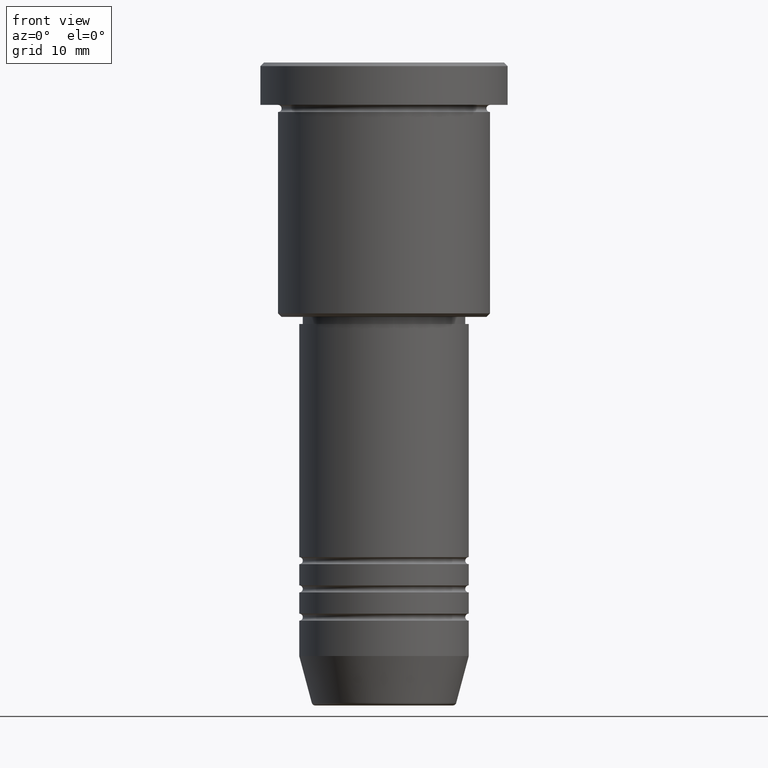
[diagram: clean part render]
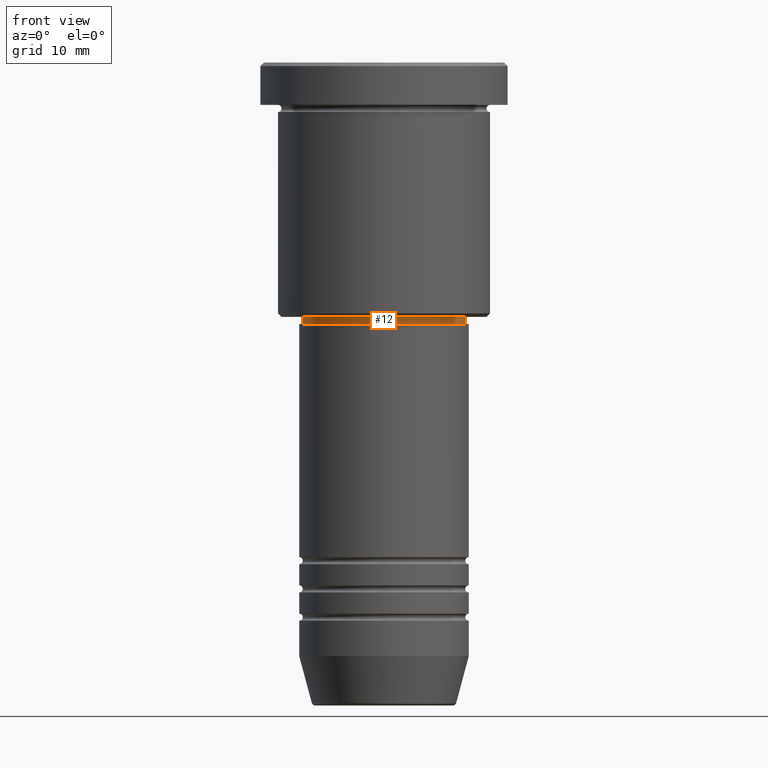
[diagram: same view with one face highlighted and labeled with its STEP entity id]
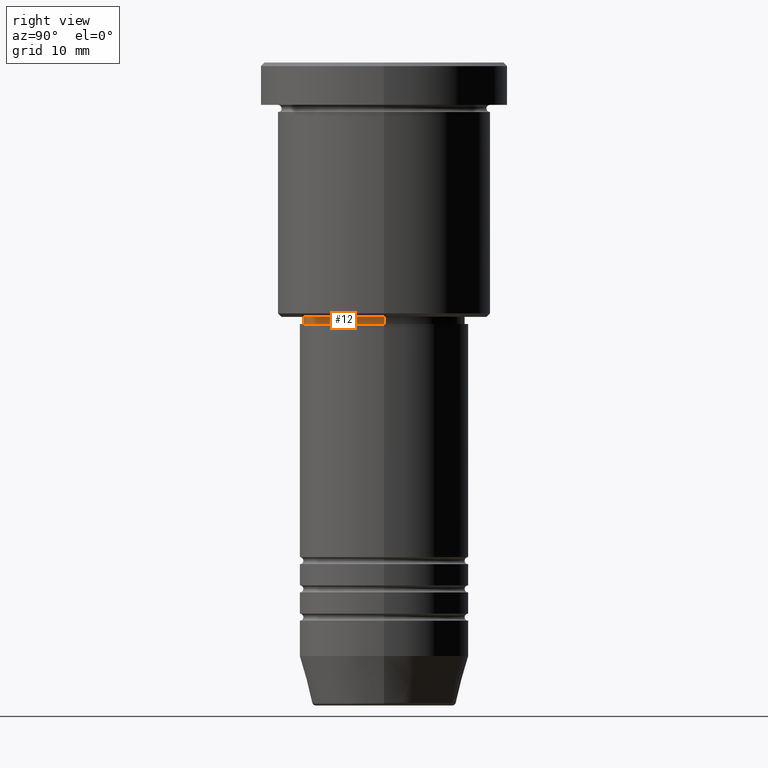
[diagram: same view with one face highlighted and labeled with its STEP entity id]
A machine part, front view. The second image highlights one B-rep face of the part: STEP entity #12.
A second angle (right view) of the same face is appended — the face is thin or edge-on in the first view.
In plain terms, the highlighted cylindrical surface (partial cylindrical patch) has radius 11.5 mm, axis along (-0, -0, 1).
Its self-contained STEP definition (entity closure, byte-faithful):
#12 = ADVANCED_FACE ( 'NONE', ( #764 ), #488, .T. ) ;
#55 = DIRECTION ( 'NONE',  ( -0.000000000000000000, -0.000000000000000000, 1.000000000000000000 ) ) ;
#99 = AXIS2_PLACEMENT_3D ( 'NONE', #104, #1029, #1016 ) ;
#104 = CARTESIAN_POINT ( 'NONE',  ( 0.000000000000000000, 0.000000000000000000, -36.99999999999999289 ) ) ;
#119 = CIRCLE ( 'NONE', #99, 11.50000000000000000 ) ;
#158 = EDGE_LOOP ( 'NONE', ( #963, #421, #386, #531 ) ) ;
#178 = EDGE_CURVE ( 'NONE', #566, #372, #865, .T. ) ;
#254 = VECTOR ( 'NONE', #55, 1000.000000000000000 ) ;
#270 = CARTESIAN_POINT ( 'NONE',  ( 11.50000000000000000, 0.000000000000000000, -36.99999999999999289 ) ) ;
#302 = VERTEX_POINT ( 'NONE', #606 ) ;
#305 = CARTESIAN_POINT ( 'NONE',  ( 11.50000000000000000, 0.000000000000000000, 0.000000000000000000 ) ) ;
#312 = CIRCLE ( 'NONE', #931, 11.50000000000000000 ) ;
#372 = VERTEX_POINT ( 'NONE', #591 ) ;
#386 = ORIENTED_EDGE ( 'NONE', *, *, #713, .T. ) ;
#409 = CARTESIAN_POINT ( 'NONE',  ( 0.000000000000000000, 0.000000000000000000, 0.000000000000000000 ) ) ;
#421 = ORIENTED_EDGE ( 'NONE', *, *, #884, .T. ) ;
#488 = CYLINDRICAL_SURFACE ( 'NONE', #778, 11.50000000000000000 ) ;
#531 = ORIENTED_EDGE ( 'NONE', *, *, #548, .F. ) ;
#538 = VERTEX_POINT ( 'NONE', #270 ) ;
#548 = EDGE_CURVE ( 'NONE', #372, #302, #312, .T. ) ;
#566 = VERTEX_POINT ( 'NONE', #770 ) ;
#591 = CARTESIAN_POINT ( 'NONE',  ( -11.50000000000000000, 1.408343819019456176E-15, -35.99999999999999289 ) ) ;
#606 = CARTESIAN_POINT ( 'NONE',  ( 11.50000000000000000, 0.000000000000000000, -35.99999999999999289 ) ) ;
#625 = CARTESIAN_POINT ( 'NONE',  ( 0.000000000000000000, 0.000000000000000000, -35.99999999999999289 ) ) ;
#632 = DIRECTION ( 'NONE',  ( -0.000000000000000000, -0.000000000000000000, 1.000000000000000000 ) ) ;
#713 = EDGE_CURVE ( 'NONE', #538, #302, #830, .T. ) ;
#764 = FACE_OUTER_BOUND ( 'NONE', #158, .T. ) ;
#765 = VECTOR ( 'NONE', #929, 1000.000000000000000 ) ;
#770 = CARTESIAN_POINT ( 'NONE',  ( -11.50000000000000000, 1.408343819019456176E-15, -36.99999999999999289 ) ) ;
#778 = AXIS2_PLACEMENT_3D ( 'NONE', #409, #1136, #1120 ) ;
#790 = CARTESIAN_POINT ( 'NONE',  ( -11.50000000000000000, 1.408343819019456176E-15, 0.000000000000000000 ) ) ;
#793 = DIRECTION ( 'NONE',  ( 1.000000000000000000, 0.000000000000000000, 0.000000000000000000 ) ) ;
#830 = LINE ( 'NONE', #305, #765 ) ;
#865 = LINE ( 'NONE', #790, #254 ) ;
#884 = EDGE_CURVE ( 'NONE', #566, #538, #119, .T. ) ;
#929 = DIRECTION ( 'NONE',  ( -0.000000000000000000, -0.000000000000000000, 1.000000000000000000 ) ) ;
#931 = AXIS2_PLACEMENT_3D ( 'NONE', #625, #632, #793 ) ;
#963 = ORIENTED_EDGE ( 'NONE', *, *, #178, .F. ) ;
#1016 = DIRECTION ( 'NONE',  ( 1.000000000000000000, 0.000000000000000000, 0.000000000000000000 ) ) ;
#1029 = DIRECTION ( 'NONE',  ( -0.000000000000000000, -0.000000000000000000, 1.000000000000000000 ) ) ;
#1120 = DIRECTION ( 'NONE',  ( 1.000000000000000000, 0.000000000000000000, 0.000000000000000000 ) ) ;
#1136 = DIRECTION ( 'NONE',  ( -0.000000000000000000, -0.000000000000000000, 1.000000000000000000 ) ) ;